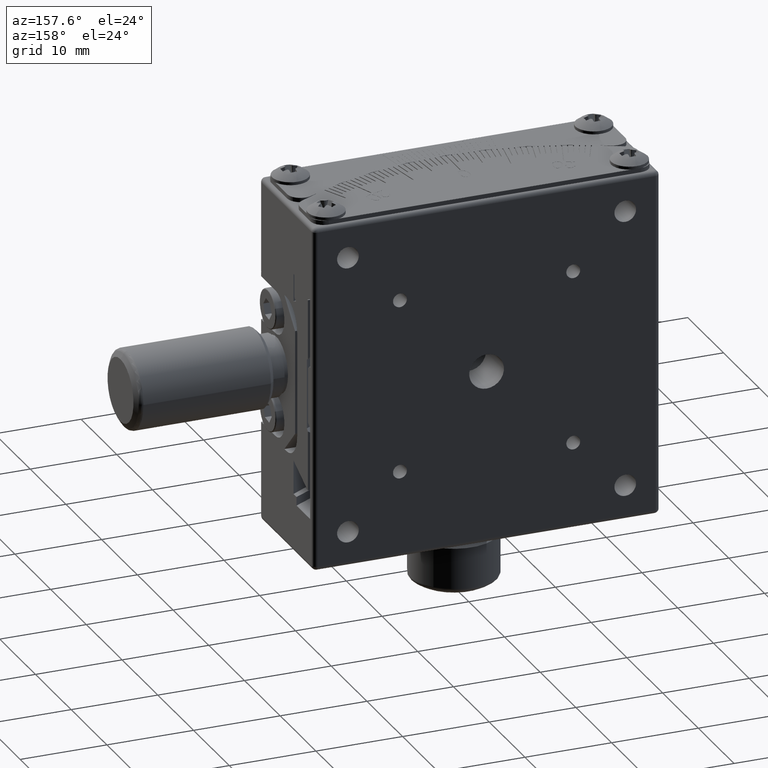
[diagram: clean part render]
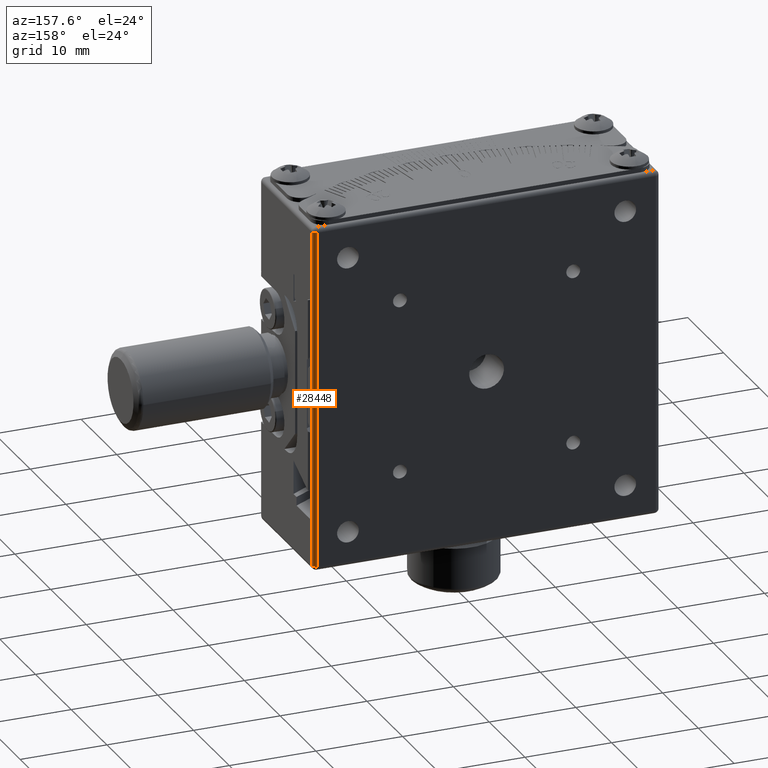
[diagram: same view with one face highlighted and labeled with its STEP entity id]
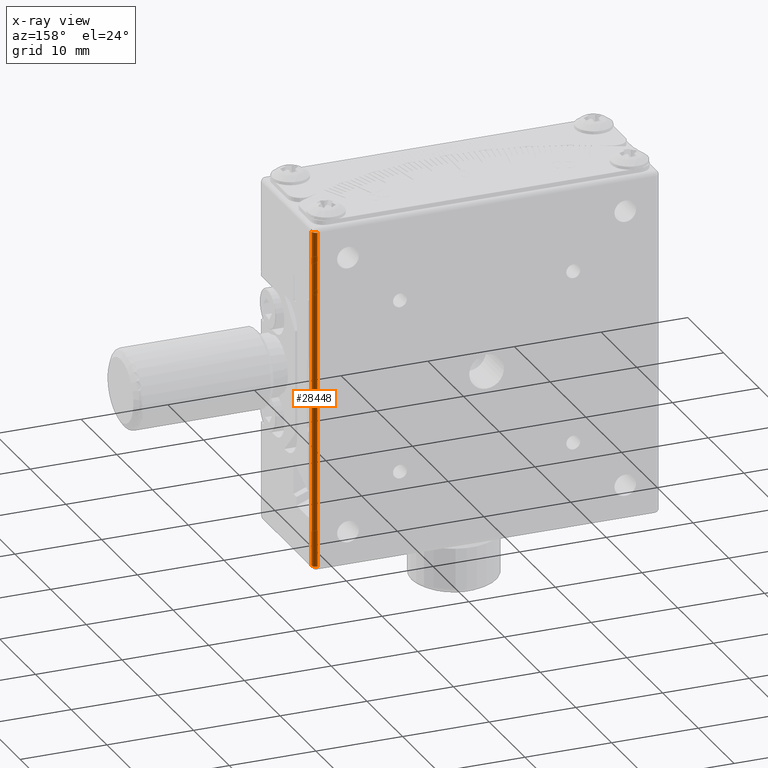
[diagram: x-ray of the same camera — body ghosted, the highlighted face saturated]
A machine part, auxiliary view. The second image highlights one B-rep face of the part: STEP entity #28448.
The next image is the same camera in x-ray: the body ghosted, the highlighted face saturated — about 0% of this face is hidden behind the body in this view.
In plain terms, the highlighted cylindrical surface (edge-blend (fillet) strip) has radius 0.5 mm, axis along (0, 0, -1).
Its self-contained STEP definition (entity closure, byte-faithful):
#1700 = EDGE_CURVE ( 'NONE', #9516, #9163, #28760, .T. ) ;
#2706 = DIRECTION ( 'NONE',  ( 1.000000000000000000, 0.000000000000000000, 0.000000000000000000 ) ) ;
#2893 = EDGE_CURVE ( 'NONE', #23991, #17186, #17444, .T. ) ;
#3206 = CYLINDRICAL_SURFACE ( 'NONE', #20997, 0.5000000000000004441 ) ;
#3445 = DIRECTION ( 'NONE',  ( -1.000000000000000000, 0.000000000000000000, 0.000000000000000000 ) ) ;
#3638 = VECTOR ( 'NONE', #6312, 1000.000000000000000 ) ;
#4805 = EDGE_CURVE ( 'NONE', #23991, #9163, #7319, .T. ) ;
#4923 = DIRECTION ( 'NONE',  ( 0.000000000000000000, 0.000000000000000000, 1.000000000000000000 ) ) ;
#5578 = AXIS2_PLACEMENT_3D ( 'NONE', #13873, #4923, #2706 ) ;
#6312 = DIRECTION ( 'NONE',  ( 0.000000000000000000, 0.000000000000000000, 1.000000000000000000 ) ) ;
#6451 = DIRECTION ( 'NONE',  ( 0.000000000000000000, 0.000000000000000000, -1.000000000000000000 ) ) ;
#7319 = CIRCLE ( 'NONE', #23728, 0.5000000000000004441 ) ;
#7491 = CARTESIAN_POINT ( 'NONE',  ( 19.50000000000000000, 15.00000000000000000, 19.50000000000000000 ) ) ;
#9163 = VERTEX_POINT ( 'NONE', #11783 ) ;
#9389 = DIRECTION ( 'NONE',  ( 0.000000000000000000, 0.000000000000000000, -1.000000000000000000 ) ) ;
#9516 = VERTEX_POINT ( 'NONE', #7491 ) ;
#10485 = DIRECTION ( 'NONE',  ( 0.000000000000000000, 0.000000000000000000, 1.000000000000000000 ) ) ;
#10933 = ORIENTED_EDGE ( 'NONE', *, *, #2893, .F. ) ;
#11783 = CARTESIAN_POINT ( 'NONE',  ( 19.50000000000000000, 15.00000000000000000, -19.50000000000000000 ) ) ;
#13873 = CARTESIAN_POINT ( 'NONE',  ( 19.50000000000000000, 14.50000000000000000, 19.50000000000000000 ) ) ;
#14878 = ORIENTED_EDGE ( 'NONE', *, *, #1700, .F. ) ;
#16136 = CARTESIAN_POINT ( 'NONE',  ( 19.50000000000000000, 14.50000000000000000, 20.00000000000000000 ) ) ;
#16341 = EDGE_LOOP ( 'NONE', ( #26896, #14878, #22914, #10933 ) ) ;
#16798 = CARTESIAN_POINT ( 'NONE',  ( 19.50000000000000000, 14.50000000000000000, -19.50000000000000000 ) ) ;
#17186 = VERTEX_POINT ( 'NONE', #25937 ) ;
#17444 = LINE ( 'NONE', #26413, #3638 ) ;
#18290 = CIRCLE ( 'NONE', #5578, 0.5000000000000004441 ) ;
#19793 = CARTESIAN_POINT ( 'NONE',  ( 19.50000000000000000, 15.00000000000000000, 20.00000000000000000 ) ) ;
#20997 = AXIS2_PLACEMENT_3D ( 'NONE', #16136, #9389, #23181 ) ;
#22914 = ORIENTED_EDGE ( 'NONE', *, *, #27971, .F. ) ;
#23181 = DIRECTION ( 'NONE',  ( -1.000000000000000000, 0.000000000000000000, 0.000000000000000000 ) ) ;
#23728 = AXIS2_PLACEMENT_3D ( 'NONE', #16798, #10485, #3445 ) ;
#23842 = VECTOR ( 'NONE', #6451, 1000.000000000000000 ) ;
#23991 = VERTEX_POINT ( 'NONE', #27098 ) ;
#25371 = FACE_OUTER_BOUND ( 'NONE', #16341, .T. ) ;
#25937 = CARTESIAN_POINT ( 'NONE',  ( 20.00000000000000000, 14.50000000000000000, 19.50000000000000000 ) ) ;
#26413 = CARTESIAN_POINT ( 'NONE',  ( 20.00000000000000000, 14.50000000000000000, 20.00000000000000000 ) ) ;
#26896 = ORIENTED_EDGE ( 'NONE', *, *, #4805, .T. ) ;
#27098 = CARTESIAN_POINT ( 'NONE',  ( 20.00000000000000000, 14.50000000000000000, -19.50000000000000000 ) ) ;
#27971 = EDGE_CURVE ( 'NONE', #17186, #9516, #18290, .T. ) ;
#28448 = ADVANCED_FACE ( 'NONE', ( #25371 ), #3206, .T. ) ;
#28760 = LINE ( 'NONE', #19793, #23842 ) ;